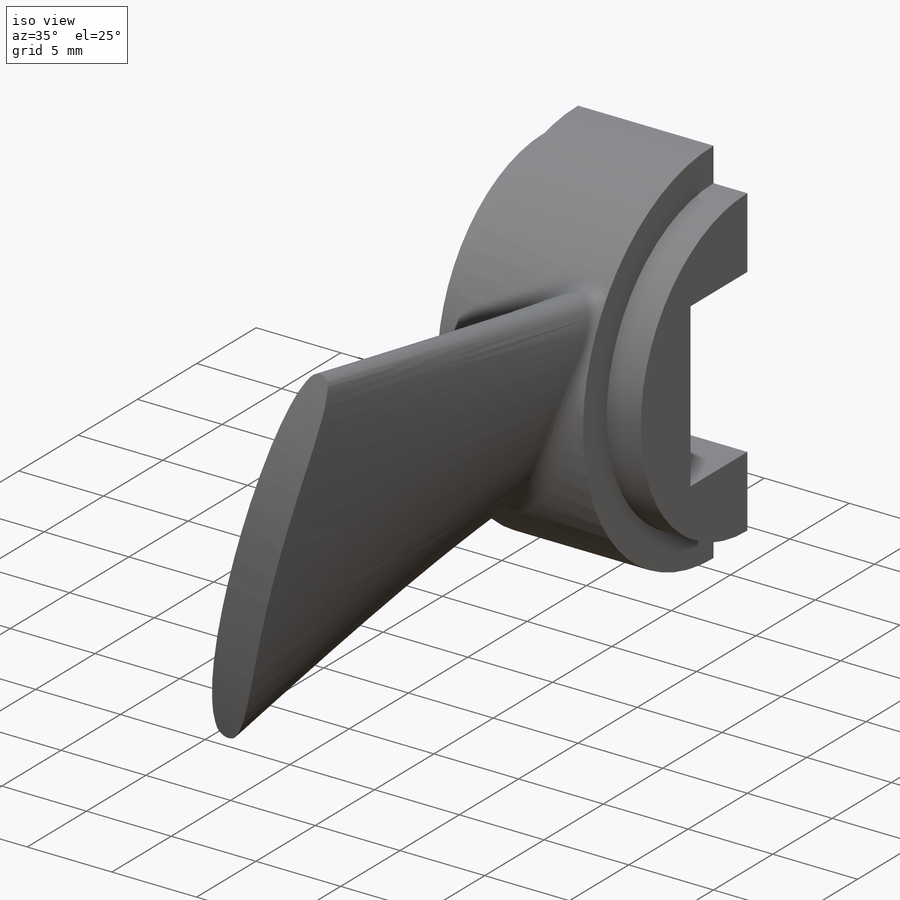
[diagram: iso view]
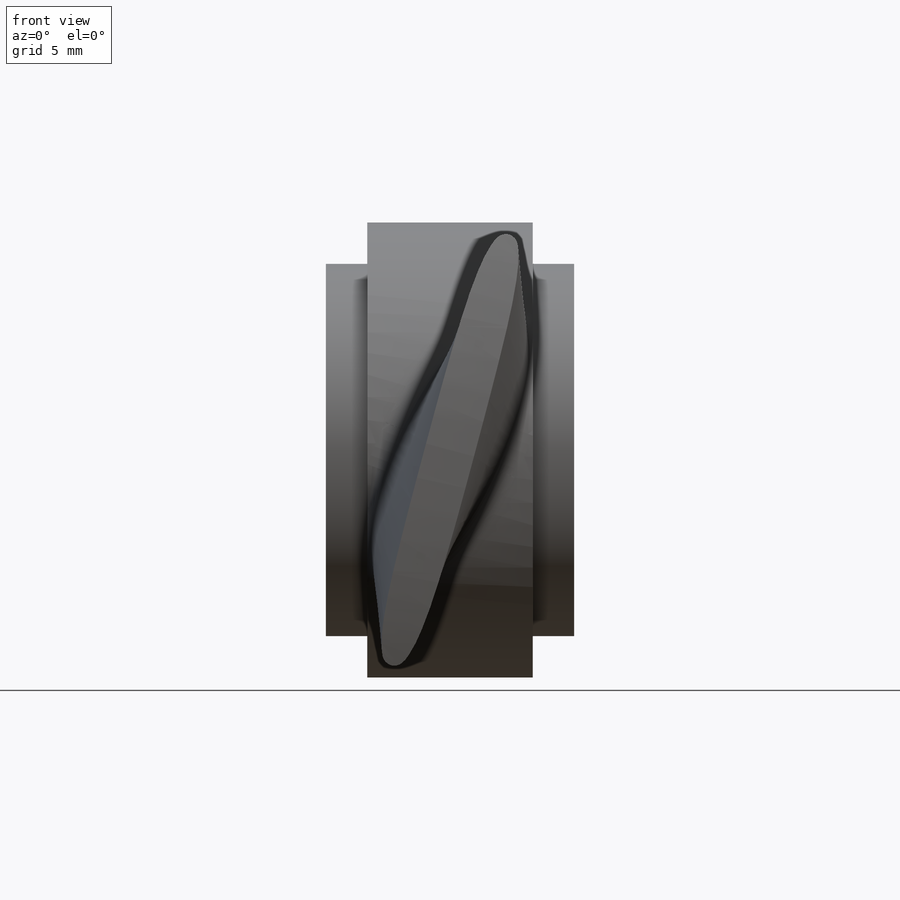
[diagram: front view]
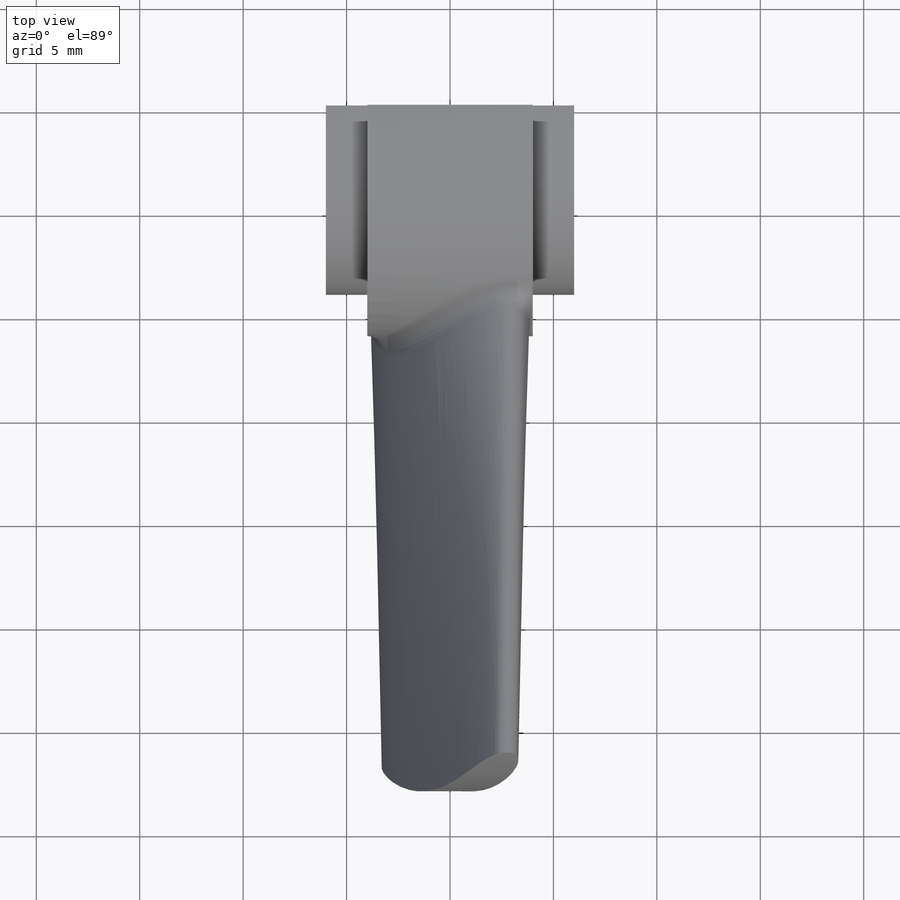
[diagram: top view]
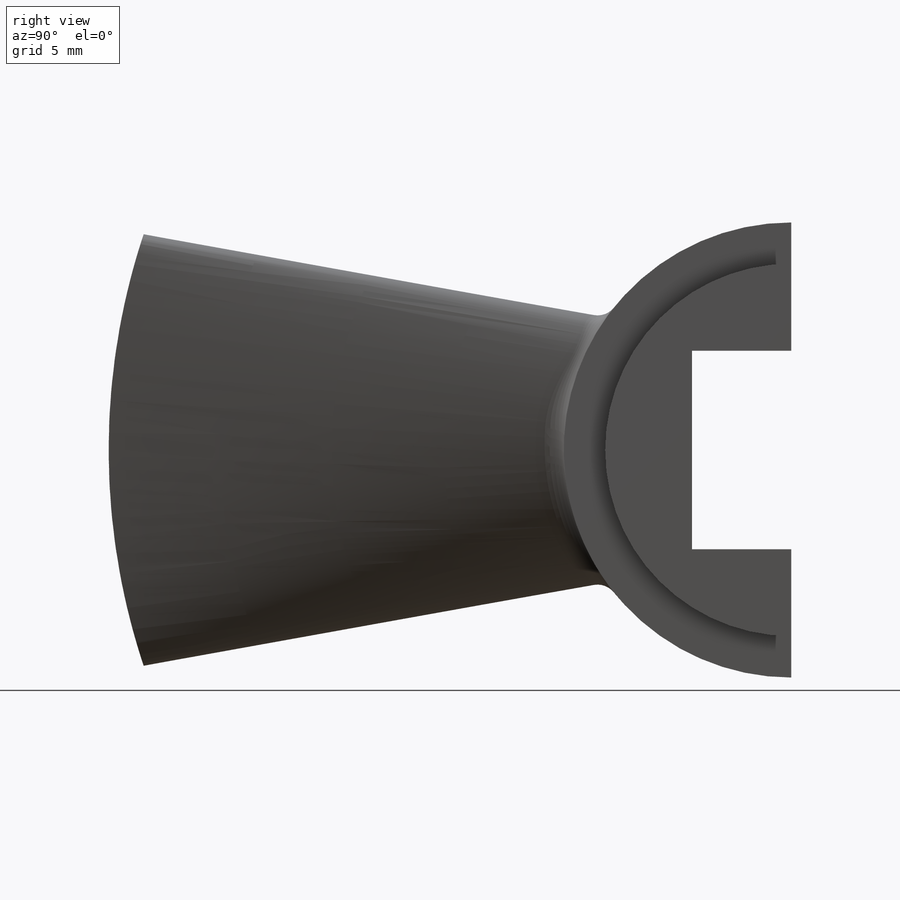
[diagram: right view]
SOLIDWORKS PART (.sldprt)
format: sldprt  version: not decoded by parser v0  size: 599,040 bytes
history: native  units: mm
features: sketch x7, plane x2, fillet x2, extrude x2, material x1, surface_op x1, delete_body x1, pattern_circular x1, revolve x1, boolean_combine x1 + 1 further entry (+13 scaffold rows collapsed)
feature tree (33):
  scaffold x13  (default folders/planes/origin — collapsed)
  material  "Material <not specified>"
  sketch  "Sketch7"  dims[c1.D1=66.0mm c1.D3=22.0mm c1.D2=~24.063502mm c2.D2=135.0deg]
  surface_op  "Surface-Extrude1"
  sketch  "Sketch8"  dims[c1.D3=33.0mm c1.D4=11.0mm c1.D1=11.0mm c1.D2=33.0mm c2.D3=~15.531543mm c2.D4=~5.552937mm c2.D5=~9.622419mm c2.sweepangleroot=~25.080175deg c2.D6=~22.238214mm c2.sweepangletip=~8.12281deg c3.D3=~10.625184mm c3.D4=~6.797308mm]
  plane  "Plane1"
  plane  "Plane2"
  sketch  "Sketch9"  dims[c1.D4=~0.55205mm c1.D5=20.0mm c1.D1=~9.029389mm c2.D1=25.0deg c2.D2=15.0mm c2.D3=5.0mm c2.D5=~1.104099mm c2.D6=5.0mm]
  sketch  "Sketch10"  dims[c1.D4=~10.387289mm c1.D5=~0.505067mm c2.D4=~223.666667mm c2.D1=~11.993426mm c3.D1=15.0deg c3.D2=2.4mm c3.D3=22.0mm c3.D4=~7.333333mm c4.D1=1.0mm]
  "DeleteFace3"
  delete_body  "Body-Delete1"
  pattern_circular  "CirPattern3"  Count=2 Angle=360deg
  fillet  "Fillet4"  Radius=0.5mm
  sketch  "Sketch1"  dims[c1.D3=9.0mm c1.D1=4.8mm c1.D2=4.8mm c2.D1=9.6mm c2.D2=9.6mm]
  extrude  "Boss-Extrude1"  Depth=12mm
  sketch  "Sketch2"  dims[D1=11.0mm D2=0.5mm]
  extrude  "Boss-Extrude2"  Depth=8mm
  sketch  "Sketch15"  dims[c1.D1=22.0mm c1.D4=22.0mm c2.D1=8.0mm c3.D1=80.0deg c3.D2=33.0mm c3.D5=22.0mm c3.D3=0.0mm]
  revolve  "Revolve2"  Angle=360deg
  boolean_combine  "Combine3"
  fillet  "Fillet3"  Radius=1mm
decode coverage: 13 of 16 modeling features carry decoded parameters; 1 rows unclassified (native names shown)
note: ~ marks probable driven/reference dimensions
note: suppression state not decoded; provenance and decode notes live in map.json
